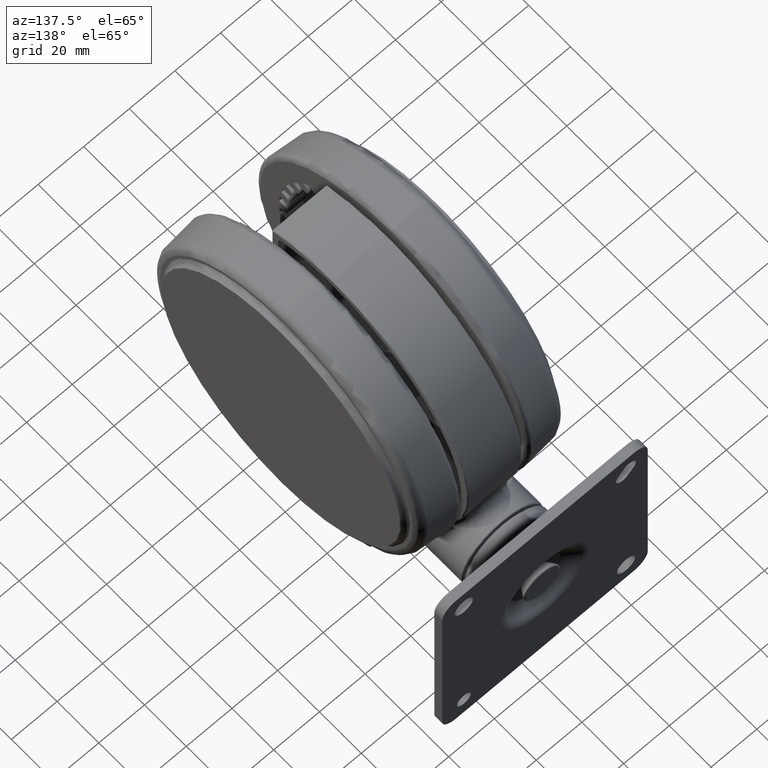
[diagram: clean part render]
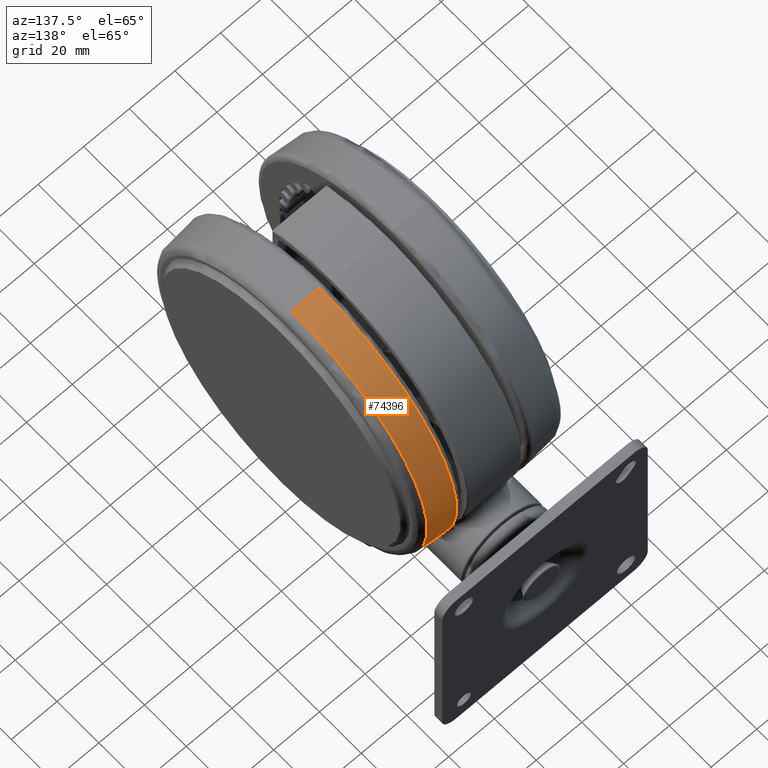
[diagram: same view with one face highlighted and labeled with its STEP entity id]
A machine part, auxiliary view. The second image highlights one B-rep face of the part: STEP entity #74396.
In plain terms, the highlighted conical surface has half-angle 4.961 deg.
Its self-contained STEP definition (entity closure, byte-faithful):
#109 = AXIS2_PLACEMENT_3D ( 'NONE', #62436, #27908, #68214 ) ;
#663 = VECTOR ( 'NONE', #23544, 1000.000000000000000 ) ;
#2446 = EDGE_CURVE ( 'NONE', #17635, #28504, #61165, .T. ) ;
#5907 = CIRCLE ( 'NONE', #68465, 63.95688609912406300 ) ;
#17635 = VERTEX_POINT ( 'NONE', #48579 ) ;
#17784 = CARTESIAN_POINT ( 'NONE',  ( -63.95688609912409100, 6.938893903907228400E-015, -5.497303234679333400 ) ) ;
#20035 = AXIS2_PLACEMENT_3D ( 'NONE', #62422, #39462, #27633 ) ;
#22482 = ORIENTED_EDGE ( 'NONE', *, *, #46510, .F. ) ;
#23196 = EDGE_LOOP ( 'NONE', ( #54333, #55634, #44260, #22482 ) ) ;
#23544 = DIRECTION ( 'NONE',  ( -0.08648479009161678900, 0.0000000000000000000, -0.9962531711782949300 ) ) ;
#27633 = DIRECTION ( 'NONE',  ( -1.000000000000000000, 0.0000000000000000000, 0.0000000000000000000 ) ) ;
#27908 = DIRECTION ( 'NONE',  ( 0.0000000000000000000, 0.0000000000000000000, 1.000000000000000000 ) ) ;
#28504 = VERTEX_POINT ( 'NONE', #71769 ) ;
#28786 = CONICAL_SURFACE ( 'NONE', #20035, 63.95688609912406300, 0.08659296680489261800 ) ;
#29399 = DIRECTION ( 'NONE',  ( 0.0000000000000000000, 0.0000000000000000000, 1.000000000000000000 ) ) ;
#30081 = CARTESIAN_POINT ( 'NONE',  ( -64.99250634235663400, 6.938893903907228400E-015, -17.42703041981672000 ) ) ;
#30578 = FACE_OUTER_BOUND ( 'NONE', #23196, .T. ) ;
#33901 = VERTEX_POINT ( 'NONE', #30081 ) ;
#38248 = CARTESIAN_POINT ( 'NONE',  ( 63.95688609912403400, 1.477135348837964200E-014, -5.497303234679333400 ) ) ;
#38494 = EDGE_CURVE ( 'NONE', #17635, #63204, #5907, .T. ) ;
#39462 = DIRECTION ( 'NONE',  ( -0.0000000000000000000, -0.0000000000000000000, -1.000000000000000000 ) ) ;
#44029 = DIRECTION ( 'NONE',  ( 0.08648479009161678900, 1.059133213606292300E-017, -0.9962531711782949300 ) ) ;
#44260 = ORIENTED_EDGE ( 'NONE', *, *, #71378, .T. ) ;
#46510 = EDGE_CURVE ( 'NONE', #63204, #33901, #46537, .T. ) ;
#46537 = LINE ( 'NONE', #17784, #663 ) ;
#48579 = CARTESIAN_POINT ( 'NONE',  ( 63.95688609912403400, 6.938893903907228400E-015, -5.497303234679333400 ) ) ;
#54333 = ORIENTED_EDGE ( 'NONE', *, *, #38494, .F. ) ;
#55249 = CIRCLE ( 'NONE', #109, 64.99250634235660600 ) ;
#55634 = ORIENTED_EDGE ( 'NONE', *, *, #2446, .T. ) ;
#57578 = VECTOR ( 'NONE', #44029, 1000.000000000000000 ) ;
#58232 = CARTESIAN_POINT ( 'NONE',  ( -63.95688609912409100, 1.477135348837964200E-014, -5.497303234679333400 ) ) ;
#61165 = LINE ( 'NONE', #38248, #57578 ) ;
#62422 = CARTESIAN_POINT ( 'NONE',  ( -2.775557561562891400E-014, 6.938893903907228400E-015, -5.497303234679333400 ) ) ;
#62436 = CARTESIAN_POINT ( 'NONE',  ( -2.775557561562891400E-014, 6.938893903907228400E-015, -17.42703041981672000 ) ) ;
#63204 = VERTEX_POINT ( 'NONE', #58232 ) ;
#63925 = CARTESIAN_POINT ( 'NONE',  ( -2.775557561562891400E-014, 6.938893903907228400E-015, -5.497303234679333400 ) ) ;
#68214 = DIRECTION ( 'NONE',  ( 1.000000000000000000, 0.0000000000000000000, 0.0000000000000000000 ) ) ;
#68465 = AXIS2_PLACEMENT_3D ( 'NONE', #63925, #29399, #69727 ) ;
#69727 = DIRECTION ( 'NONE',  ( 1.000000000000000000, 0.0000000000000000000, 0.0000000000000000000 ) ) ;
#71378 = EDGE_CURVE ( 'NONE', #28504, #33901, #55249, .T. ) ;
#71769 = CARTESIAN_POINT ( 'NONE',  ( 64.99250634235657700, 1.489818038998033800E-014, -17.42703041981672000 ) ) ;
#74396 = ADVANCED_FACE ( 'NONE', ( #30578 ), #28786, .T. ) ;